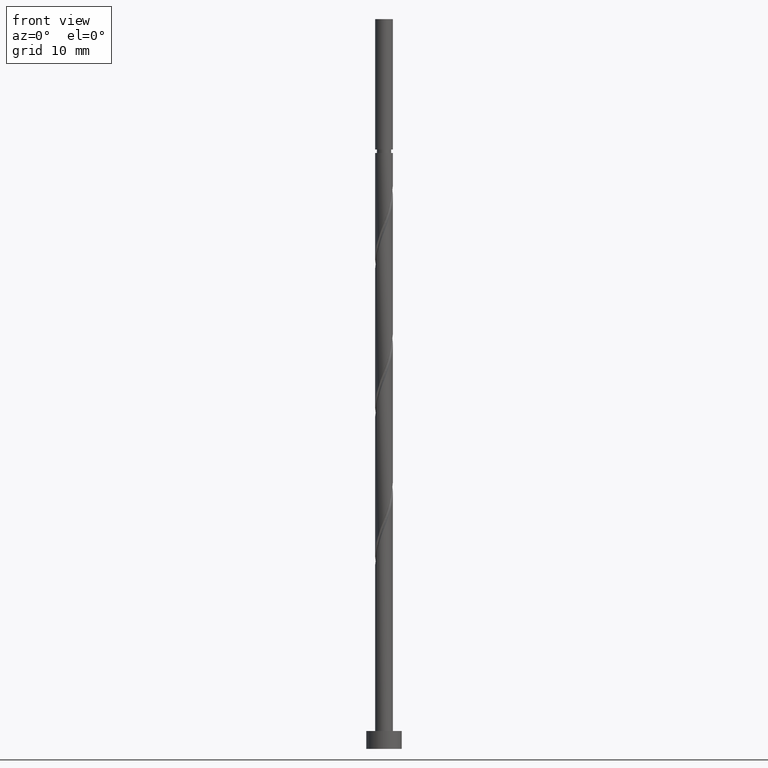
[diagram: clean part render]
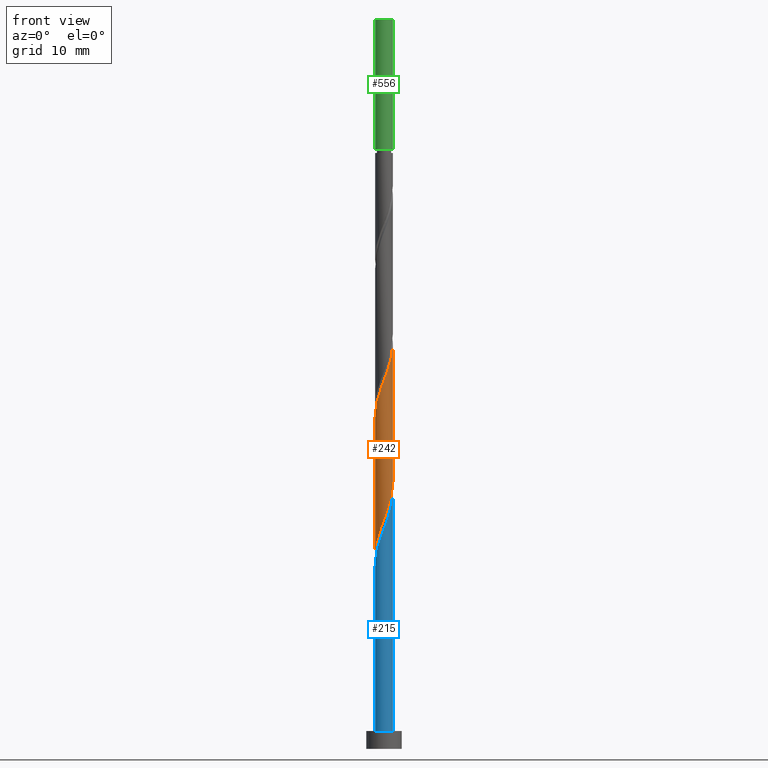
[diagram: same view with three faces highlighted in distinct colors, each labeled with its STEP entity id]
A machine part, front view with three faces highlighted in distinct colors.
Their STEP definitions:

[orange] entity #242 — the highlighted cylindrical surface (edge-blend (fillet) strip) has radius 1 mm, axis along (-0, -0, -1).
#17 = CARTESIAN_POINT ( 'NONE',  ( 0.6324182898423053034, -0.7944421381061683718, 27.60218534189446515 ) ) ;
#35 = CARTESIAN_POINT ( 'NONE',  ( -0.9951180796480328938, -0.2020673444260052964, 37.78737052707965915 ) ) ;
#85 = VECTOR ( 'NONE', #217, 1000.000000000000000 ) ;
#113 = CARTESIAN_POINT ( 'NONE',  ( 0.4774909380590706687, -0.8786366735297770347, 27.13922237893150680 ) ) ;
#127 = CARTESIAN_POINT ( 'NONE',  ( -0.3225635862758357564, -0.9628312089533853646, 40.56514830485741641 ) ) ;
#211 = ORIENTED_EDGE ( 'NONE', *, *, #881, .F. ) ;
#217 = DIRECTION ( 'NONE',  ( -0.000000000000000000, -0.000000000000000000, -1.000000000000000000 ) ) ;
#221 = CARTESIAN_POINT ( 'NONE',  ( -1.000000000000001554, 1.178310986386221321E-15, 37.25651563875756977 ) ) ;
#240 = CARTESIAN_POINT ( 'NONE',  ( -0.8921910604809026868, -0.4848570054394683582, 22.97255571226483539 ) ) ;
#242 = ADVANCED_FACE ( 'NONE', ( #492 ), #1414, .T. ) ;
#277 = VERTEX_POINT ( 'NONE', #383 ) ;
#300 = CARTESIAN_POINT ( 'NONE',  ( -0.4774909380590708352, -0.8786366735297768127, 40.10218534189446871 ) ) ;
#322 = EDGE_LOOP ( 'NONE', ( #528, #211, #1194, #1321 ) ) ;
#345 = CARTESIAN_POINT ( 'NONE',  ( 0.9305560469009568347, -0.3661494825560557831, 28.99107423078335799 ) ) ;
#364 = CARTESIAN_POINT ( 'NONE',  ( 0.02619704632702175504, -1.015088626125574267, 41.49107423078334023 ) ) ;
#375 = CARTESIAN_POINT ( 'NONE',  ( -1.000000000000001554, 1.178310986386221518E-15, 37.25651563875757688 ) ) ;
#383 = CARTESIAN_POINT ( 'NONE',  ( 1.000000000000001554, -1.187647840478029667E-15, 45.58984897209090548 ) ) ;
#398 = CARTESIAN_POINT ( 'NONE',  ( -1.000000000000001554, -0.01290167433201880841, 37.29053301268993437 ) ) ;
#405 = DIRECTION ( 'NONE',  ( -0.000000000000000000, -0.000000000000000000, -1.000000000000000000 ) ) ;
#419 = CARTESIAN_POINT ( 'NONE',  ( -0.8659940141538807756, -0.5302316206861061865, 38.71329645300556876 ) ) ;
#436 = CARTESIAN_POINT ( 'NONE',  ( 1.000000000000000444, -0.1630543718204630343, 45.15992945972528361 ) ) ;
#454 = DIRECTION ( 'NONE',  ( -0.000000000000000000, -0.000000000000000000, -1.000000000000000000 ) ) ;
#457 = CARTESIAN_POINT ( 'NONE',  ( 1.000000000000001554, -0.01290167433201786819, 29.95087470813604469 ) ) ;
#463 = CARTESIAN_POINT ( 'NONE',  ( -0.1989974874213183975, -0.9800000000000027578, 25.28737052707964850 ) ) ;
#487 = CARTESIAN_POINT ( 'NONE',  ( -0.1481832699744071169, -0.9889599175394798714, 41.02811126782040674 ) ) ;
#492 = FACE_OUTER_BOUND ( 'NONE', #322, .T. ) ;
#504 = CARTESIAN_POINT ( 'NONE',  ( -1.000000000000001554, 9.030418540514747156E-13, 21.65155874873267550 ) ) ;
#509 = EDGE_CURVE ( 'NONE', #859, #1444, #668, .T. ) ;
#528 = ORIENTED_EDGE ( 'NONE', *, *, #655, .F. ) ;
#579 = CARTESIAN_POINT ( 'NONE',  ( 0.3225635862758355343, -0.9628312089533858087, 26.67625941596853067 ) ) ;
#600 = CARTESIAN_POINT ( 'NONE',  ( -0.5221762109439057609, -0.8528376192009056167, 24.36144460115373178 ) ) ;
#655 = EDGE_CURVE ( 'NONE', #277, #859, #1123, .T. ) ;
#668 =( BOUNDED_CURVE ( )  B_SPLINE_CURVE ( 2, ( #701, #457, #916, #939, #345, #688, #797, #17, #113, #579, #1274, #1405, #463, #921, #600, #818, #1287, #240, #1040, #808, #1293 ),
 .UNSPECIFIED., .F., .T. ) 
 B_SPLINE_CURVE_WITH_KNOTS ( ( 3, 2, 2, 2, 2, 2, 2, 2, 2, 2, 3 ),
 ( 0.8045248053855292847, 0.8055555555555555802, 0.8194444444444444198, 0.8333333333333333703, 0.8472222222222222099, 0.8611111111111111605, 0.8750000000000000000, 0.8888888888888888395, 0.9027777777777777901, 0.9166666666666666297, 0.9295248053855653669 ),
 .UNSPECIFIED. ) 
 CURVE ( )  GEOMETRIC_REPRESENTATION_ITEM ( )  RATIONAL_B_SPLINE_CURVE ( ( 0.9071930855141310257, 0.9080659294509785262, 0.9090909090909183865, 0.8952797754656529605, 0.9090909090909183865, 0.8952797754656529605, 0.9090909090909183865, 0.8952797754656529605, 0.9090909090909183865, 0.8952797754656529605, 0.9090909090909183865, 0.8952797754656529605, 0.9090909090909183865, 0.8952797754656529605, 0.9090909090909183865, 0.8952797754656529605, 0.9090909090909183865, 0.8952797754656529605, 0.9090909090909183865, 0.8963047551055568496, 0.9071930855141921990 ) ) 
 REPRESENTATION_ITEM ( '' )  );
#688 = CARTESIAN_POINT ( 'NONE',  ( 0.8659940141538803315, -0.5302316206861067416, 28.52811126782038897 ) ) ;
#701 = CARTESIAN_POINT ( 'NONE',  ( 1.000000000000001776, 7.096009109774468484E-16, 29.98489208206839507 ) ) ;
#739 = CARTESIAN_POINT ( 'NONE',  ( 0.8921910604809025758, -0.4848570054394683582, 44.26885200856113300 ) ) ;
#743 = DIRECTION ( 'NONE',  ( -1.000000000000000000, 0.000000000000000000, 0.000000000000000000 ) ) ;
#754 = CARTESIAN_POINT ( 'NONE',  ( -0.9996671490029762630, -0.02579905432887130354, 37.32440756411669014 ) ) ;
#765 = EDGE_CURVE ( 'NONE', #1046, #1444, #935, .T. ) ;
#776 = AXIS2_PLACEMENT_3D ( 'NONE', #834, #405, #743 ) ;
#797 = CARTESIAN_POINT ( 'NONE',  ( 0.7492061519980928175, -0.6623368793961379453, 28.06514830485743417 ) ) ;
#808 = CARTESIAN_POINT ( 'NONE',  ( -1.000000000000148770, -0.1630543718200203052, 22.08147826109946976 ) ) ;
#818 = CARTESIAN_POINT ( 'NONE',  ( -0.6725544933721968599, -0.7607638645273802069, 23.89848163819075566 ) ) ;
#834 = CARTESIAN_POINT ( 'NONE',  ( 0.000000000000000000, 0.000000000000000000, 82.00000000000000000 ) ) ;
#838 = CARTESIAN_POINT ( 'NONE',  ( 0.1989974874213181477, -0.9800000000000029798, 41.95403719374633056 ) ) ;
#859 = VERTEX_POINT ( 'NONE', #1037 ) ;
#880 = CARTESIAN_POINT ( 'NONE',  ( -0.7492061519980931505, -0.6623368793961371681, 39.17625941596855199 ) ) ;
#881 = EDGE_CURVE ( 'NONE', #1046, #277, #1143, .T. ) ;
#916 = CARTESIAN_POINT ( 'NONE',  ( 0.9996671490029767071, -0.02579905432887173375, 29.91700015670928536 ) ) ;
#921 = CARTESIAN_POINT ( 'NONE',  ( -0.3717979285156147728, -0.9449113738744308044, 24.82440756411668659 ) ) ;
#935 = LINE ( 'NONE', #1381, #85 ) ;
#939 = CARTESIAN_POINT ( 'NONE',  ( 0.9951180796480328938, -0.2020673444260055462, 29.45403719374631990 ) ) ;
#952 = CARTESIAN_POINT ( 'NONE',  ( 0.5221762109439057609, -0.8528376192009056167, 42.87996311967226148 ) ) ;
#995 = CARTESIAN_POINT ( 'NONE',  ( -0.9305560469009567237, -0.3661494825560557276, 38.25033349004260685 ) ) ;
#1037 = CARTESIAN_POINT ( 'NONE',  ( 1.000000000000001776, 7.096009109774469470E-16, 29.98489208206839507 ) ) ;
#1040 = CARTESIAN_POINT ( 'NONE',  ( -0.9482036394194114370, -0.3176631206038652011, 22.50959274930187348 ) ) ;
#1046 = VERTEX_POINT ( 'NONE', #221 ) ;
#1123 = LINE ( 'NONE', #1132, #1275 ) ;
#1128 = CARTESIAN_POINT ( 'NONE',  ( 1.000000000000001554, -1.187647840478029667E-15, 45.58984897209090548 ) ) ;
#1132 = CARTESIAN_POINT ( 'NONE',  ( 1.000000000000000000, 1.224646799147353207E-16, 82.00000000000000000 ) ) ;
#1143 =( BOUNDED_CURVE ( )  B_SPLINE_CURVE ( 2, ( #375, #398, #754, #35, #995, #419, #880, #1345, #300, #127, #487, #364, #838, #1301, #952, #1418, #1307, #739, #1208, #436, #1128 ),
 .UNSPECIFIED., .F., .T. ) 
 B_SPLINE_CURVE_WITH_KNOTS ( ( 3, 2, 2, 2, 2, 2, 2, 2, 2, 2, 3 ),
 ( 0.3045248053855293957, 0.3055555555555555802, 0.3194444444444444198, 0.3333333333333333703, 0.3472222222222222099, 0.3611111111111111605, 0.3750000000000000000, 0.3888888888888888395, 0.4027777777777777901, 0.4166666666666666297, 0.4295248053855291182 ),
 .UNSPECIFIED. ) 
 CURVE ( )  GEOMETRIC_REPRESENTATION_ITEM ( )  RATIONAL_B_SPLINE_CURVE ( ( 0.9071930855141410177, 0.9080659294509885182, 0.9090909090909282675, 0.8952797754656627305, 0.9090909090909282675, 0.8952797754656627305, 0.9090909090909282675, 0.8952797754656627305, 0.9090909090909282675, 0.8952797754656627305, 0.9090909090909282675, 0.8952797754656627305, 0.9090909090909282675, 0.8952797754656627305, 0.9090909090909282675, 0.8952797754656627305, 0.9090909090909282675, 0.8952797754656627305, 0.9090909090909282675, 0.8963047551056028128, 0.9071930855141405736 ) ) 
 REPRESENTATION_ITEM ( '' )  );
#1194 = ORIENTED_EDGE ( 'NONE', *, *, #765, .T. ) ;
#1208 = CARTESIAN_POINT ( 'NONE',  ( 0.9482036394194113260, -0.3176631206038659783, 44.73181497152410202 ) ) ;
#1274 = CARTESIAN_POINT ( 'NONE',  ( 0.1481832699744068393, -0.9889599175394803154, 26.21329645300558298 ) ) ;
#1275 = VECTOR ( 'NONE', #454, 1000.000000000000000 ) ;
#1287 = CARTESIAN_POINT ( 'NONE',  ( -0.7823727769265501619, -0.6228104349834241438, 23.43551867522780441 ) ) ;
#1293 = CARTESIAN_POINT ( 'NONE',  ( -1.000000000000001554, 9.030418540514747156E-13, 21.65155874873267905 ) ) ;
#1301 = CARTESIAN_POINT ( 'NONE',  ( 0.3717979285156140512, -0.9449113738744311375, 42.41700015670928536 ) ) ;
#1307 = CARTESIAN_POINT ( 'NONE',  ( 0.7823727769265499399, -0.6228104349834241438, 43.80588904559818531 ) ) ;
#1321 = ORIENTED_EDGE ( 'NONE', *, *, #509, .F. ) ;
#1345 = CARTESIAN_POINT ( 'NONE',  ( -0.6324182898423054144, -0.7944421381061683718, 39.63922237893150680 ) ) ;
#1381 = CARTESIAN_POINT ( 'NONE',  ( -1.000000000000000000, 0.000000000000000000, 82.00000000000000000 ) ) ;
#1405 = CARTESIAN_POINT ( 'NONE',  ( -0.02619704632702248362, -1.015088626125574933, 25.75033349004260685 ) ) ;
#1414 = CYLINDRICAL_SURFACE ( 'NONE', #776, 1.000000000000000000 ) ;
#1418 = CARTESIAN_POINT ( 'NONE',  ( 0.6725544933721966379, -0.7607638645273804290, 43.34292608263520208 ) ) ;
#1444 = VERTEX_POINT ( 'NONE', #504 ) ;

[blue] entity #215 — the highlighted cylindrical surface (edge-blend (fillet) strip) has radius 1 mm, axis along (-0, -0, -1).
#82 = EDGE_CURVE ( 'NONE', #489, #1362, #149, .T. ) ;
#89 = CARTESIAN_POINT ( 'NONE',  ( 0.000000000000000000, 0.000000000000000000, 2.000000000000000000 ) ) ;
#95 = CARTESIAN_POINT ( 'NONE',  ( 0.7823727769265499399, -0.6228104349834241438, 27.13922237893150324 ) ) ;
#106 = EDGE_CURVE ( 'NONE', #1362, #1211, #879, .T. ) ;
#115 = CARTESIAN_POINT ( 'NONE',  ( -0.1481832699744071169, -0.9889599175394798714, 24.36144460115373178 ) ) ;
#126 = DIRECTION ( 'NONE',  ( -1.000000000000000000, 0.000000000000000000, 0.000000000000000000 ) ) ;
#149 =( BOUNDED_CURVE ( )  B_SPLINE_CURVE ( 2, ( #1347, #432, #1022, #889, #310, #467, #691, #1387, #334, #1164, #115, #349, #793, #428, #1464, #666, #95, #1146, #1237, #762, #656 ),
 .UNSPECIFIED., .F., .T. ) 
 B_SPLINE_CURVE_WITH_KNOTS ( ( 3, 2, 2, 2, 2, 2, 2, 2, 2, 2, 3 ),
 ( 0.05452480538552929162, 0.05555555555555558023, 0.06944444444444441977, 0.08333333333333337034, 0.09722222222222220989, 0.1111111111111111605, 0.1250000000000000000, 0.1388888888888888395, 0.1527777777777777901, 0.1666666666666666297, 0.1795248053855292569 ),
 .UNSPECIFIED. ) 
 CURVE ( )  GEOMETRIC_REPRESENTATION_ITEM ( )  RATIONAL_B_SPLINE_CURVE ( ( 0.9071930855141409067, 0.9080659294509884072, 0.9090909090909282675, 0.8952797754656627305, 0.9090909090909282675, 0.8952797754656627305, 0.9090909090909282675, 0.8952797754656627305, 0.9090909090909282675, 0.8952797754656627305, 0.9090909090909282675, 0.8952797754656627305, 0.9090909090909282675, 0.8952797754656627305, 0.9090909090909282675, 0.8952797754656627305, 0.9090909090909282675, 0.8952797754656627305, 0.9090909090909282675, 0.8963047551056025908, 0.9071930855141407957 ) ) 
 REPRESENTATION_ITEM ( '' )  );
#201 = CIRCLE ( 'NONE', #499, 1.000000000000000000 ) ;
#215 = ADVANCED_FACE ( 'NONE', ( #326 ), #1029, .T. ) ;
#238 = CARTESIAN_POINT ( 'NONE',  ( 1.000000000000001554, -1.187647840478029667E-15, 28.92318230542424828 ) ) ;
#249 = CARTESIAN_POINT ( 'NONE',  ( -1.000000000000001554, 1.178310986386221321E-15, 20.58984897209091258 ) ) ;
#278 = ORIENTED_EDGE ( 'NONE', *, *, #458, .T. ) ;
#310 = CARTESIAN_POINT ( 'NONE',  ( -0.9305560469009567237, -0.3661494825560557276, 21.58366682337595321 ) ) ;
#326 = FACE_OUTER_BOUND ( 'NONE', #948, .T. ) ;
#333 = CARTESIAN_POINT ( 'NONE',  ( 0.000000000000000000, 0.000000000000000000, 82.00000000000000000 ) ) ;
#334 = CARTESIAN_POINT ( 'NONE',  ( -0.4774909380590708352, -0.8786366735297768127, 23.43551867522780441 ) ) ;
#349 = CARTESIAN_POINT ( 'NONE',  ( 0.02619704632702175504, -1.015088626125574267, 24.82440756411669369 ) ) ;
#417 = AXIS2_PLACEMENT_3D ( 'NONE', #333, #418, #126 ) ;
#418 = DIRECTION ( 'NONE',  ( -0.000000000000000000, -0.000000000000000000, -1.000000000000000000 ) ) ;
#428 = CARTESIAN_POINT ( 'NONE',  ( 0.3717979285156140512, -0.9449113738744311375, 25.75033349004261396 ) ) ;
#432 = CARTESIAN_POINT ( 'NONE',  ( -1.000000000000001332, -0.01290167433201749522, 20.62386634602326296 ) ) ;
#458 = EDGE_CURVE ( 'NONE', #489, #1398, #1035, .T. ) ;
#467 = CARTESIAN_POINT ( 'NONE',  ( -0.8659940141538807756, -0.5302316206861061865, 22.04662978633891157 ) ) ;
#489 = VERTEX_POINT ( 'NONE', #249 ) ;
#499 = AXIS2_PLACEMENT_3D ( 'NONE', #89, #548, #901 ) ;
#548 = DIRECTION ( 'NONE',  ( 0.000000000000000000, 0.000000000000000000, 1.000000000000000000 ) ) ;
#554 = DIRECTION ( 'NONE',  ( -0.000000000000000000, -0.000000000000000000, -1.000000000000000000 ) ) ;
#651 = CARTESIAN_POINT ( 'NONE',  ( 1.000000000000000000, 1.224646799147353207E-16, 82.00000000000000000 ) ) ;
#656 = CARTESIAN_POINT ( 'NONE',  ( 1.000000000000001554, -1.187647840478029667E-15, 28.92318230542424828 ) ) ;
#666 = CARTESIAN_POINT ( 'NONE',  ( 0.6725544933721966379, -0.7607638645273804290, 26.67625941596853423 ) ) ;
#677 = CARTESIAN_POINT ( 'NONE',  ( 1.000000000000000000, 1.224646799147353207E-16, 2.000000000000000000 ) ) ;
#691 = CARTESIAN_POINT ( 'NONE',  ( -0.7492061519980931505, -0.6623368793961371681, 22.50959274930187348 ) ) ;
#762 = CARTESIAN_POINT ( 'NONE',  ( 1.000000000000001110, -0.1630543718204613690, 28.49326279305860510 ) ) ;
#788 = CARTESIAN_POINT ( 'NONE',  ( -1.000000000000000000, 0.000000000000000000, 82.00000000000000000 ) ) ;
#793 = CARTESIAN_POINT ( 'NONE',  ( 0.1989974874213181477, -0.9800000000000029798, 25.28737052707964850 ) ) ;
#879 = LINE ( 'NONE', #651, #1151 ) ;
#889 = CARTESIAN_POINT ( 'NONE',  ( -0.9951180796480328938, -0.2020673444260052964, 21.12070386041297354 ) ) ;
#901 = DIRECTION ( 'NONE',  ( 1.000000000000000000, 0.000000000000000000, 0.000000000000000000 ) ) ;
#911 = EDGE_CURVE ( 'NONE', #1398, #1211, #201, .T. ) ;
#915 = ORIENTED_EDGE ( 'NONE', *, *, #106, .F. ) ;
#948 = EDGE_LOOP ( 'NONE', ( #915, #1101, #278, #1092 ) ) ;
#1022 = CARTESIAN_POINT ( 'NONE',  ( -0.9996671490029762630, -0.02579905432887130354, 20.65774089745002939 ) ) ;
#1029 = CYLINDRICAL_SURFACE ( 'NONE', #417, 1.000000000000000000 ) ;
#1035 = LINE ( 'NONE', #788, #1217 ) ;
#1059 = DIRECTION ( 'NONE',  ( -0.000000000000000000, -0.000000000000000000, -1.000000000000000000 ) ) ;
#1092 = ORIENTED_EDGE ( 'NONE', *, *, #911, .T. ) ;
#1101 = ORIENTED_EDGE ( 'NONE', *, *, #82, .F. ) ;
#1146 = CARTESIAN_POINT ( 'NONE',  ( 0.8921910604809025758, -0.4848570054394683582, 27.60218534189446160 ) ) ;
#1151 = VECTOR ( 'NONE', #554, 1000.000000000000000 ) ;
#1164 = CARTESIAN_POINT ( 'NONE',  ( -0.3225635862758357564, -0.9628312089533853646, 23.89848163819076277 ) ) ;
#1210 = CARTESIAN_POINT ( 'NONE',  ( -1.000000000000000000, 0.000000000000000000, 2.000000000000000000 ) ) ;
#1211 = VERTEX_POINT ( 'NONE', #677 ) ;
#1217 = VECTOR ( 'NONE', #1059, 1000.000000000000000 ) ;
#1237 = CARTESIAN_POINT ( 'NONE',  ( 0.9482036394194113260, -0.3176631206038659783, 28.06514830485743062 ) ) ;
#1347 = CARTESIAN_POINT ( 'NONE',  ( -1.000000000000001554, 1.178310986386221321E-15, 20.58984897209091258 ) ) ;
#1362 = VERTEX_POINT ( 'NONE', #238 ) ;
#1387 = CARTESIAN_POINT ( 'NONE',  ( -0.6324182898423054144, -0.7944421381061683718, 22.97255571226482829 ) ) ;
#1398 = VERTEX_POINT ( 'NONE', #1210 ) ;
#1464 = CARTESIAN_POINT ( 'NONE',  ( 0.5221762109439057609, -0.8528376192009056167, 26.21329645300558298 ) ) ;

[green] entity #556 — the highlighted cylindrical surface (edge-blend (fillet) strip) has radius 1 mm, axis along (-0, -0, -1).
#46 = DIRECTION ( 'NONE',  ( -0.000000000000000000, -0.000000000000000000, -1.000000000000000000 ) ) ;
#65 = AXIS2_PLACEMENT_3D ( 'NONE', #258, #1319, #1076 ) ;
#70 = LINE ( 'NONE', #983, #318 ) ;
#80 = ORIENTED_EDGE ( 'NONE', *, *, #1138, .F. ) ;
#131 = CARTESIAN_POINT ( 'NONE',  ( 1.000000000000003775, 1.224646799147357645E-16, 67.35403719374632203 ) ) ;
#146 = AXIS2_PLACEMENT_3D ( 'NONE', #267, #1197, #610 ) ;
#256 = VECTOR ( 'NONE', #266, 1000.000000000000000 ) ;
#258 = CARTESIAN_POINT ( 'NONE',  ( 0.000000000000000000, 0.000000000000000000, 82.00000000000000000 ) ) ;
#266 = DIRECTION ( 'NONE',  ( -0.000000000000000000, -0.000000000000000000, -1.000000000000000000 ) ) ;
#267 = CARTESIAN_POINT ( 'NONE',  ( 0.000000000000000000, 0.000000000000000000, 67.35403719374632203 ) ) ;
#318 = VECTOR ( 'NONE', #46, 1000.000000000000000 ) ;
#341 = EDGE_CURVE ( 'NONE', #734, #438, #70, .T. ) ;
#353 = DIRECTION ( 'NONE',  ( -0.000000000000000000, -0.000000000000000000, -1.000000000000000000 ) ) ;
#438 = VERTEX_POINT ( 'NONE', #1384 ) ;
#448 = CIRCLE ( 'NONE', #65, 1.000000000000000000 ) ;
#462 = ORIENTED_EDGE ( 'NONE', *, *, #341, .T. ) ;
#472 = CYLINDRICAL_SURFACE ( 'NONE', #1296, 1.000000000000000000 ) ;
#527 = VERTEX_POINT ( 'NONE', #131 ) ;
#556 = ADVANCED_FACE ( 'NONE', ( #1168 ), #472, .T. ) ;
#572 = CARTESIAN_POINT ( 'NONE',  ( 1.000000000000000000, 1.224646799147353207E-16, 82.00000000000000000 ) ) ;
#610 = DIRECTION ( 'NONE',  ( -1.000000000000000000, 0.000000000000000000, 0.000000000000000000 ) ) ;
#632 = LINE ( 'NONE', #719, #256 ) ;
#633 = ORIENTED_EDGE ( 'NONE', *, *, #1379, .F. ) ;
#709 = ORIENTED_EDGE ( 'NONE', *, *, #1446, .F. ) ;
#715 = DIRECTION ( 'NONE',  ( -1.000000000000000000, 0.000000000000000000, 0.000000000000000000 ) ) ;
#719 = CARTESIAN_POINT ( 'NONE',  ( 1.000000000000000000, 1.224646799147353207E-16, 82.00000000000000000 ) ) ;
#734 = VERTEX_POINT ( 'NONE', #805 ) ;
#752 = CIRCLE ( 'NONE', #146, 1.000000000000003775 ) ;
#805 = CARTESIAN_POINT ( 'NONE',  ( -1.000000000000000000, 0.000000000000000000, 82.00000000000000000 ) ) ;
#931 = CARTESIAN_POINT ( 'NONE',  ( 0.000000000000000000, 0.000000000000000000, 82.00000000000000000 ) ) ;
#983 = CARTESIAN_POINT ( 'NONE',  ( -1.000000000000000000, 0.000000000000000000, 82.00000000000000000 ) ) ;
#1076 = DIRECTION ( 'NONE',  ( 1.000000000000000000, 0.000000000000000000, 0.000000000000000000 ) ) ;
#1138 = EDGE_CURVE ( 'NONE', #527, #438, #752, .T. ) ;
#1168 = FACE_OUTER_BOUND ( 'NONE', #1481, .T. ) ;
#1197 = DIRECTION ( 'NONE',  ( -0.000000000000000000, -0.000000000000000000, -1.000000000000000000 ) ) ;
#1213 = VERTEX_POINT ( 'NONE', #572 ) ;
#1296 = AXIS2_PLACEMENT_3D ( 'NONE', #931, #353, #715 ) ;
#1319 = DIRECTION ( 'NONE',  ( 0.000000000000000000, 0.000000000000000000, 1.000000000000000000 ) ) ;
#1379 = EDGE_CURVE ( 'NONE', #734, #1213, #448, .T. ) ;
#1384 = CARTESIAN_POINT ( 'NONE',  ( -1.000000000000003775, 0.000000000000000000, 67.35403719374632203 ) ) ;
#1446 = EDGE_CURVE ( 'NONE', #1213, #527, #632, .T. ) ;
#1481 = EDGE_LOOP ( 'NONE', ( #709, #633, #462, #80 ) ) ;